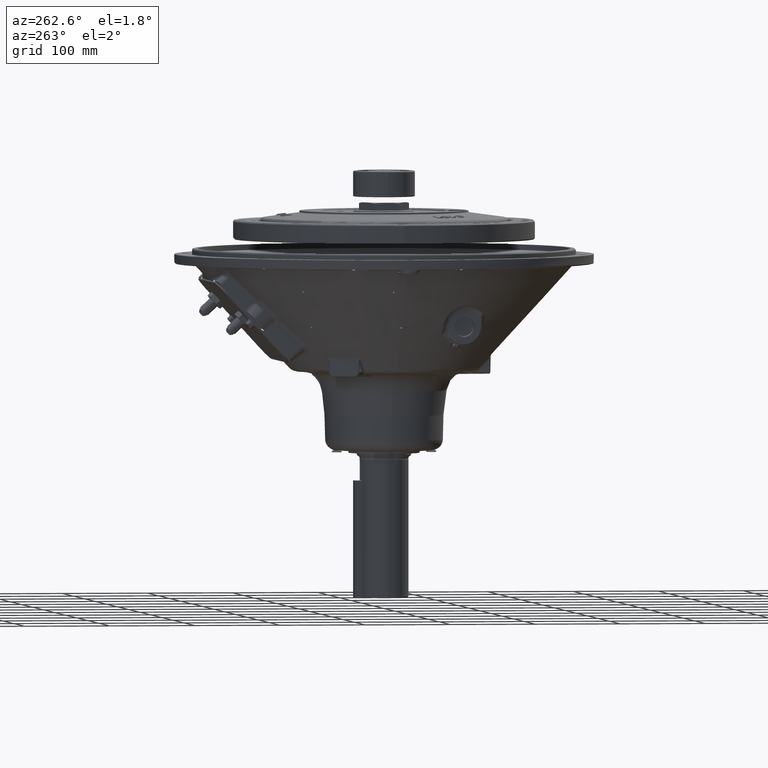
[diagram: clean part render]
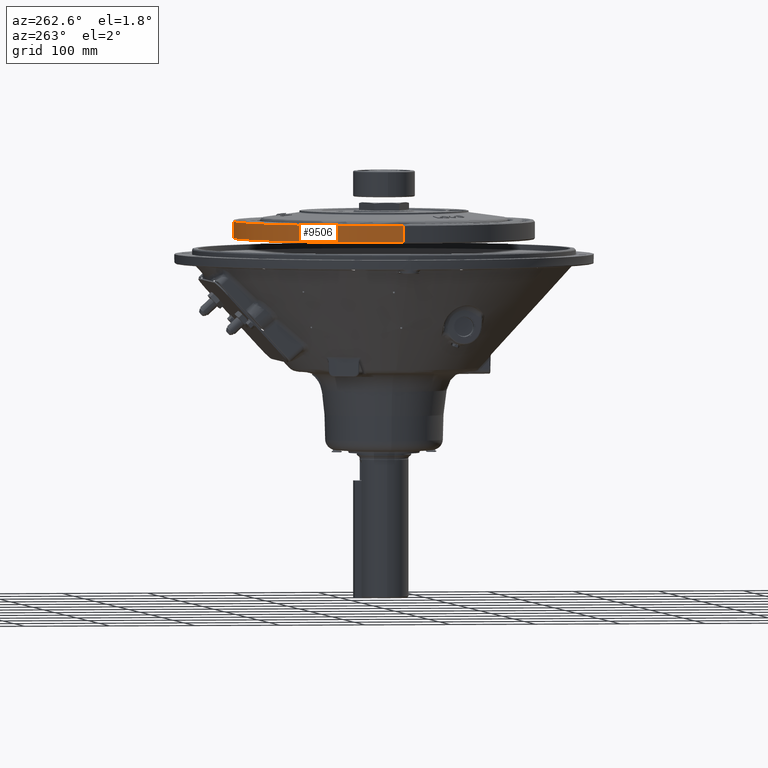
[diagram: same view with one face highlighted and labeled with its STEP entity id]
A machine part, auxiliary view. The second image highlights one B-rep face of the part: STEP entity #9506.
In plain terms, the highlighted cylindrical surface (partial cylindrical patch) has radius 176.181 mm, axis along (-0, -0, 1).
Its self-contained STEP definition (entity closure, byte-faithful):
#8252 = EDGE_CURVE ( 'NONE', #12463, #12460, #27890, .T. ) ;
#8262 = EDGE_CURVE ( 'NONE', #12465, #12463, #27935, .T. ) ;
#8267 = EDGE_CURVE ( 'NONE', #12460, #12461, #27961, .T. ) ;
#8272 = EDGE_CURVE ( 'NONE', #12465, #12461, #27953, .T. ) ;
#9229 = CYLINDRICAL_SURFACE ( 'NONE', #53711, 176.1807499999999600 ) ;
#9231 = FACE_OUTER_BOUND ( 'NONE', #30415, .T. ) ;
#9506 = ADVANCED_FACE ( 'NONE', ( #9231 ), #9229, .T. ) ;
#12460 = VERTEX_POINT ( 'NONE', #70288 ) ;
#12461 = VERTEX_POINT ( 'NONE', #71362 ) ;
#12463 = VERTEX_POINT ( 'NONE', #71372 ) ;
#12465 = VERTEX_POINT ( 'NONE', #71376 ) ;
#27885 = VECTOR ( 'NONE', #50505, 1000.000000000000000 ) ;
#27890 = LINE ( 'NONE', #50488, #27885 ) ;
#27935 = CIRCLE ( 'NONE', #52069, 176.1807499999999600 ) ;
#27953 = LINE ( 'NONE', #51093, #27957 ) ;
#27957 = VECTOR ( 'NONE', #51105, 1000.000000000000000 ) ;
#27961 = CIRCLE ( 'NONE', #52082, 176.1807499999999600 ) ;
#30415 = EDGE_LOOP ( 'NONE', ( #41057, #41055, #41069, #41067 ) ) ;
#41055 = ORIENTED_EDGE ( 'NONE', *, *, #8252, .T. ) ;
#41057 = ORIENTED_EDGE ( 'NONE', *, *, #8262, .T. ) ;
#41067 = ORIENTED_EDGE ( 'NONE', *, *, #8272, .F. ) ;
#41069 = ORIENTED_EDGE ( 'NONE', *, *, #8267, .T. ) ;
#50488 = CARTESIAN_POINT ( 'NONE',  ( -176.1807499999999600, 2.157591915588799700E-014, 14.22299999999999900 ) ) ;
#50505 = DIRECTION ( 'NONE',  ( -0.0000000000000000000, -0.0000000000000000000, 1.000000000000000000 ) ) ;
#50703 = CARTESIAN_POINT ( 'NONE',  ( 0.0000000000000000000, 0.0000000000000000000, 18.79600000000019100 ) ) ;
#50706 = DIRECTION ( 'NONE',  ( -0.0000000000000000000, -0.0000000000000000000, 1.000000000000000000 ) ) ;
#50716 = DIRECTION ( 'NONE',  ( 1.000000000000000000, 0.0000000000000000000, 0.0000000000000000000 ) ) ;
#50805 = CARTESIAN_POINT ( 'NONE',  ( 0.0000000000000000000, 0.0000000000000000000, 38.10000000000036400 ) ) ;
#50818 = DIRECTION ( 'NONE',  ( 0.0000000000000000000, 0.0000000000000000000, -1.000000000000000000 ) ) ;
#50821 = DIRECTION ( 'NONE',  ( 1.000000000000000000, 0.0000000000000000000, 0.0000000000000000000 ) ) ;
#51093 = CARTESIAN_POINT ( 'NONE',  ( 176.1807499999999600, 0.0000000000000000000, 14.22299999999999900 ) ) ;
#51105 = DIRECTION ( 'NONE',  ( -0.0000000000000000000, -0.0000000000000000000, 1.000000000000000000 ) ) ;
#52069 = AXIS2_PLACEMENT_3D ( 'NONE', #50703, #50706, #50716 ) ;
#52082 = AXIS2_PLACEMENT_3D ( 'NONE', #50805, #50818, #50821 ) ;
#53711 = AXIS2_PLACEMENT_3D ( 'NONE', #66964, #66995, #66899 ) ;
#66899 = DIRECTION ( 'NONE',  ( 1.000000000000000000, 0.0000000000000000000, 0.0000000000000000000 ) ) ;
#66964 = CARTESIAN_POINT ( 'NONE',  ( 0.0000000000000000000, 0.0000000000000000000, 14.22299999999999900 ) ) ;
#66995 = DIRECTION ( 'NONE',  ( -0.0000000000000000000, -0.0000000000000000000, 1.000000000000000000 ) ) ;
#70288 = CARTESIAN_POINT ( 'NONE',  ( -176.1807499999999600, 2.157591915588799700E-014, 38.10000000000036400 ) ) ;
#71362 = CARTESIAN_POINT ( 'NONE',  ( 176.1807499999999600, 0.0000000000000000000, 38.10000000000036400 ) ) ;
#71372 = CARTESIAN_POINT ( 'NONE',  ( -176.1807499999999600, 2.157591915588800000E-014, 18.79600000000019100 ) ) ;
#71376 = CARTESIAN_POINT ( 'NONE',  ( 176.1807499999999600, 0.0000000000000000000, 18.79600000000019100 ) ) ;